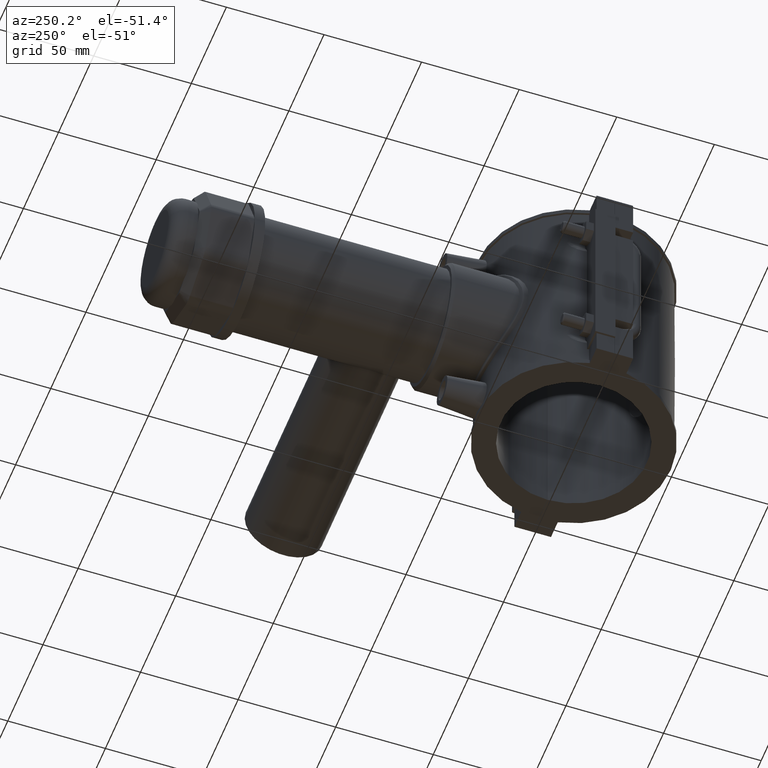
[diagram: clean part render]
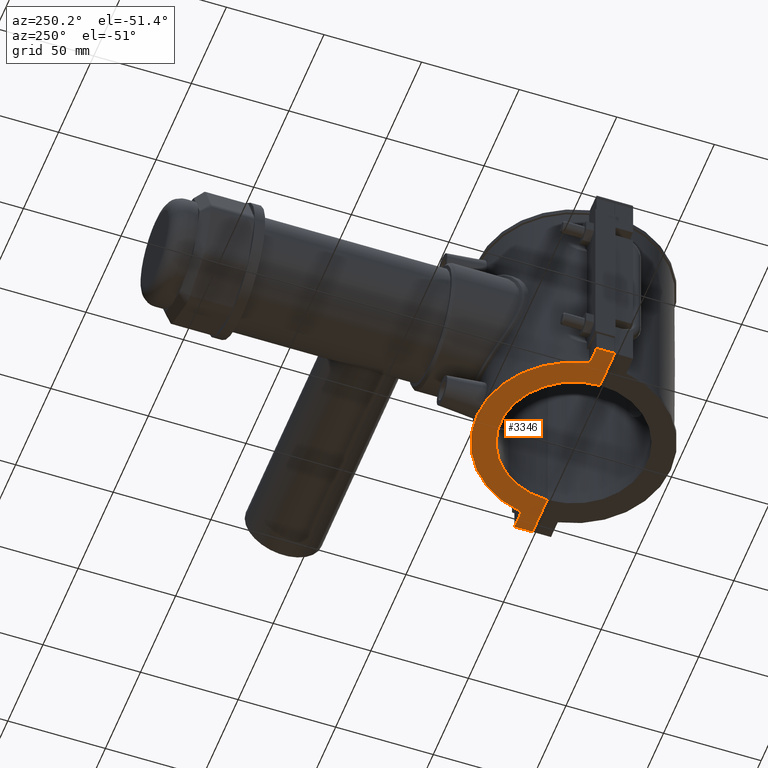
[diagram: same view with one face highlighted and labeled with its STEP entity id]
A machine part, auxiliary view. The second image highlights one B-rep face of the part: STEP entity #3346.
In plain terms, the highlighted planar face has unit normal (0, 0, 1).
Its self-contained STEP definition (entity closure, byte-faithful):
#115=LINE('',#5473,#402);
#178=LINE('',#5846,#465);
#274=LINE('',#6415,#561);
#323=LINE('',#6711,#610);
#325=LINE('',#6714,#612);
#326=LINE('',#6716,#613);
#402=VECTOR('',#3980,9.66676336755878);
#465=VECTOR('',#4107,9.32499999999999);
#561=VECTOR('',#4393,21.0000333333482);
#610=VECTOR('',#4554,21.0000333333482);
#612=VECTOR('',#4558,9.66676336755878);
#613=VECTOR('',#4561,9.32499999999999);
#966=FACE_OUTER_BOUND('',#1216,.T.);
#1216=EDGE_LOOP('',(#3022,#3023,#3024,#3025,#3026,#3027,#3028,#3029));
#1262=CIRCLE('',#3461,49.725);
#1333=CIRCLE('',#3658,37.5);
#1418=VERTEX_POINT('',#5437);
#1419=VERTEX_POINT('',#5438);
#1432=VERTEX_POINT('',#5471);
#1508=VERTEX_POINT('',#5843);
#1509=VERTEX_POINT('',#5845);
#1599=VERTEX_POINT('',#6414);
#1642=VERTEX_POINT('',#6708);
#1643=VERTEX_POINT('',#6710);
#1769=EDGE_CURVE('',#1418,#1419,#1262,.T.);
#1786=EDGE_CURVE('',#1418,#1432,#115,.T.);
#1880=EDGE_CURVE('',#1509,#1508,#178,.T.);
#2020=EDGE_CURVE('',#1599,#1509,#274,.T.);
#2096=EDGE_CURVE('',#1643,#1642,#323,.T.);
#2098=EDGE_CURVE('',#1508,#1419,#325,.T.);
#2099=EDGE_CURVE('',#1432,#1643,#326,.T.);
#2101=EDGE_CURVE('',#1642,#1599,#1333,.T.);
#3022=ORIENTED_EDGE('',*,*,#2096,.T.);
#3023=ORIENTED_EDGE('',*,*,#2101,.T.);
#3024=ORIENTED_EDGE('',*,*,#2020,.T.);
#3025=ORIENTED_EDGE('',*,*,#1880,.T.);
#3026=ORIENTED_EDGE('',*,*,#2098,.T.);
#3027=ORIENTED_EDGE('',*,*,#1769,.F.);
#3028=ORIENTED_EDGE('',*,*,#1786,.T.);
#3029=ORIENTED_EDGE('',*,*,#2099,.T.);
#3154=PLANE('',#3659);
#3346=ADVANCED_FACE('',(#966),#3154,.F.);
#3461=AXIS2_PLACEMENT_3D('',#5439,#3949,#3950);
#3658=AXIS2_PLACEMENT_3D('',#6719,#4566,#4567);
#3659=AXIS2_PLACEMENT_3D('',#6720,#4568,#4569);
#3949=DIRECTION('center_axis',(0.,0.,1.));
#3950=DIRECTION('ref_axis',(0.982066096177803,0.188536953242836,0.));
#3980=DIRECTION('',(1.,0.,0.));
#4107=DIRECTION('',(0.,1.,0.));
#4393=DIRECTION('',(-1.,2.96533927517403E-19,0.));
#4554=DIRECTION('',(-1.,2.96533927517403E-19,0.));
#4558=DIRECTION('',(1.,0.,0.));
#4561=DIRECTION('',(0.,-1.,0.));
#4566=DIRECTION('center_axis',(0.,0.,1.));
#4567=DIRECTION('ref_axis',(-1.,0.,0.));
#4568=DIRECTION('center_axis',(0.,0.,1.));
#4569=DIRECTION('ref_axis',(1.,0.,0.));
#5437=CARTESIAN_POINT('',(48.8332366324412,9.375,-59.));
#5438=CARTESIAN_POINT('',(-48.8332366324412,9.375,-59.));
#5439=CARTESIAN_POINT('Origin',(0.,0.,-59.));
#5471=CARTESIAN_POINT('',(58.5,9.375,-59.));
#5473=CARTESIAN_POINT('',(58.5,9.375,-59.));
#5843=CARTESIAN_POINT('',(-58.5,9.375,-59.));
#5845=CARTESIAN_POINT('',(-58.5,0.0500000000000078,-59.));
#5846=CARTESIAN_POINT('',(-58.5,9.375,-59.));
#6414=CARTESIAN_POINT('',(-37.4999666666519,0.0500000000000078,-59.));
#6415=CARTESIAN_POINT('',(2.35981206391352,0.0500000000000078,-59.));
#6708=CARTESIAN_POINT('',(37.4999666666519,0.0500000000000078,-59.));
#6710=CARTESIAN_POINT('',(58.5,0.0500000000000078,-59.));
#6711=CARTESIAN_POINT('',(2.35981206391352,0.0500000000000078,-59.));
#6714=CARTESIAN_POINT('',(-47.840065583149,9.375,-59.));
#6716=CARTESIAN_POINT('',(58.5,-9.375,-59.));
#6719=CARTESIAN_POINT('Origin',(0.,0.,-59.));
#6720=CARTESIAN_POINT('Origin',(-53.780375872173,-1.58495564254233E-16,
-59.));